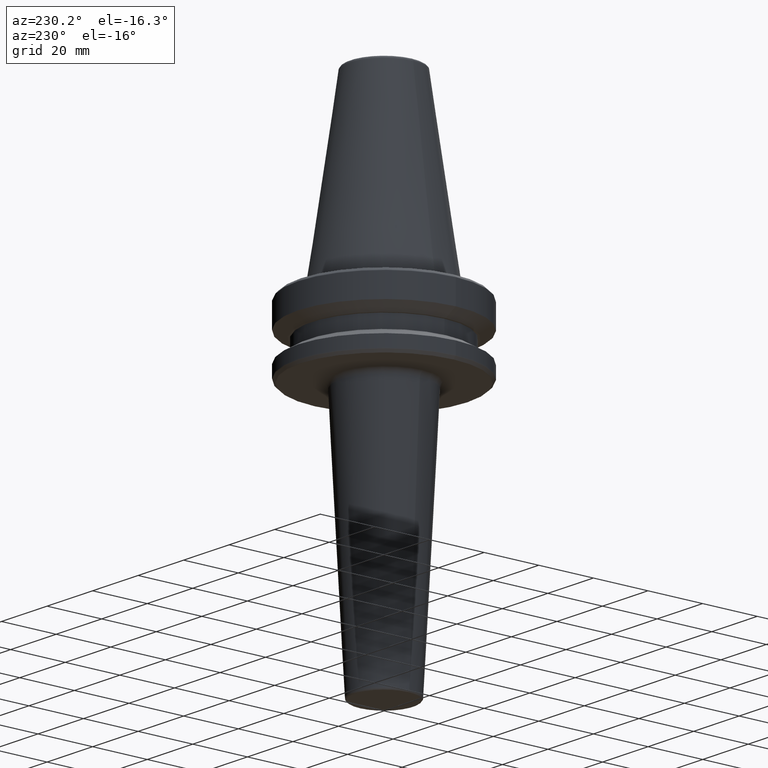
[diagram: clean part render]
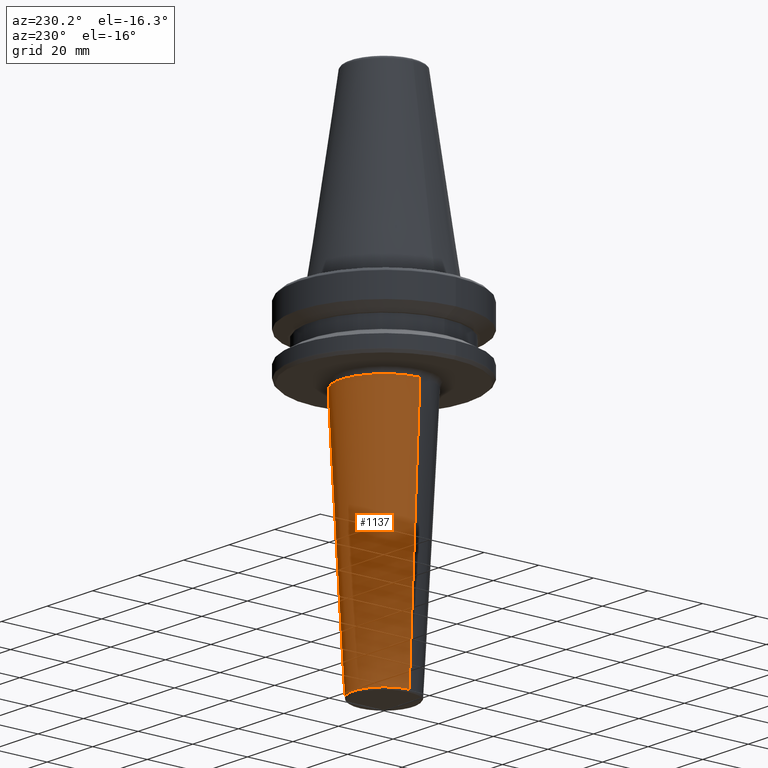
[diagram: same view with one face highlighted and labeled with its STEP entity id]
A machine part, auxiliary view. The second image highlights one B-rep face of the part: STEP entity #1137.
In plain terms, the highlighted conical surface has half-angle 3 deg.
Its self-contained STEP definition (entity closure, byte-faithful):
#42 = LINE ( 'NONE', #1017, #52 ) ;
#52 = VECTOR ( 'NONE', #438, 1000.000000000000100 ) ;
#74 = CARTESIAN_POINT ( 'NONE',  ( 15.77459353724345800, 0.0000000000000000000, -28.89532808751404900 ) ) ;
#84 = CIRCLE ( 'NONE', #307, 15.77459353724345800 ) ;
#143 = AXIS2_PLACEMENT_3D ( 'NONE', #1124, #952, #356 ) ;
#192 = CIRCLE ( 'NONE', #143, 11.03973197443175600 ) ;
#201 = ORIENTED_EDGE ( 'NONE', *, *, #755, .F. ) ;
#217 = EDGE_CURVE ( 'NONE', #315, #429, #282, .T. ) ;
#270 = VECTOR ( 'NONE', #609, 1000.000000000000100 ) ;
#282 = LINE ( 'NONE', #887, #270 ) ;
#291 = CARTESIAN_POINT ( 'NONE',  ( 0.0000000000000000000, 0.0000000000000000000, -27.00000000000000400 ) ) ;
#307 = AXIS2_PLACEMENT_3D ( 'NONE', #340, #1021, #1194 ) ;
#315 = VERTEX_POINT ( 'NONE', #853 ) ;
#340 = CARTESIAN_POINT ( 'NONE',  ( 0.0000000000000000000, 0.0000000000000000000, -28.89532808751404900 ) ) ;
#356 = DIRECTION ( 'NONE',  ( 1.000000000000000000, 0.0000000000000000000, 0.0000000000000000000 ) ) ;
#411 = EDGE_CURVE ( 'NONE', #1166, #315, #192, .T. ) ;
#429 = VERTEX_POINT ( 'NONE', #1032 ) ;
#438 = DIRECTION ( 'NONE',  ( 0.05233595624294394600, 0.0000000000000000000, 0.9986295347545739400 ) ) ;
#482 = ORIENTED_EDGE ( 'NONE', *, *, #411, .T. ) ;
#504 = DIRECTION ( 'NONE',  ( 1.000000000000000000, 0.0000000000000000000, 0.0000000000000000000 ) ) ;
#609 = DIRECTION ( 'NONE',  ( -0.05233595624294394600, 6.409306129323724000E-018, 0.9986295347545739400 ) ) ;
#619 = ORIENTED_EDGE ( 'NONE', *, *, #697, .T. ) ;
#645 = VERTEX_POINT ( 'NONE', #74 ) ;
#697 = EDGE_CURVE ( 'NONE', #429, #645, #84, .T. ) ;
#708 = FACE_OUTER_BOUND ( 'NONE', #863, .T. ) ;
#755 = EDGE_CURVE ( 'NONE', #1166, #645, #42, .T. ) ;
#853 = CARTESIAN_POINT ( 'NONE',  ( -11.03973197443175500, 1.351977242593253800E-015, -119.2418687649943800 ) ) ;
#863 = EDGE_LOOP ( 'NONE', ( #482, #960, #619, #201 ) ) ;
#887 = CARTESIAN_POINT ( 'NONE',  ( -15.87392347332284400, 1.943994957151485700E-015, -27.00000000000000400 ) ) ;
#890 = DIRECTION ( 'NONE',  ( -0.0000000000000000000, -0.0000000000000000000, 1.000000000000000000 ) ) ;
#899 = CONICAL_SURFACE ( 'NONE', #928, 15.87392347332284400, 0.05235987755982999400 ) ;
#928 = AXIS2_PLACEMENT_3D ( 'NONE', #291, #890, #504 ) ;
#952 = DIRECTION ( 'NONE',  ( -0.0000000000000000000, -0.0000000000000000000, 1.000000000000000000 ) ) ;
#960 = ORIENTED_EDGE ( 'NONE', *, *, #217, .T. ) ;
#987 = CARTESIAN_POINT ( 'NONE',  ( 11.03973197443175500, 0.0000000000000000000, -119.2418687649943800 ) ) ;
#1017 = CARTESIAN_POINT ( 'NONE',  ( 15.87392347332284400, 0.0000000000000000000, -27.00000000000000400 ) ) ;
#1021 = DIRECTION ( 'NONE',  ( -0.0000000000000000000, -0.0000000000000000000, -1.000000000000000000 ) ) ;
#1032 = CARTESIAN_POINT ( 'NONE',  ( -15.77459353724345800, 1.931830548323572700E-015, -28.89532808751404900 ) ) ;
#1124 = CARTESIAN_POINT ( 'NONE',  ( 0.0000000000000000000, 0.0000000000000000000, -119.2418687649943800 ) ) ;
#1137 = ADVANCED_FACE ( 'NONE', ( #708 ), #899, .T. ) ;
#1166 = VERTEX_POINT ( 'NONE', #987 ) ;
#1194 = DIRECTION ( 'NONE',  ( -1.000000000000000000, 0.0000000000000000000, 0.0000000000000000000 ) ) ;